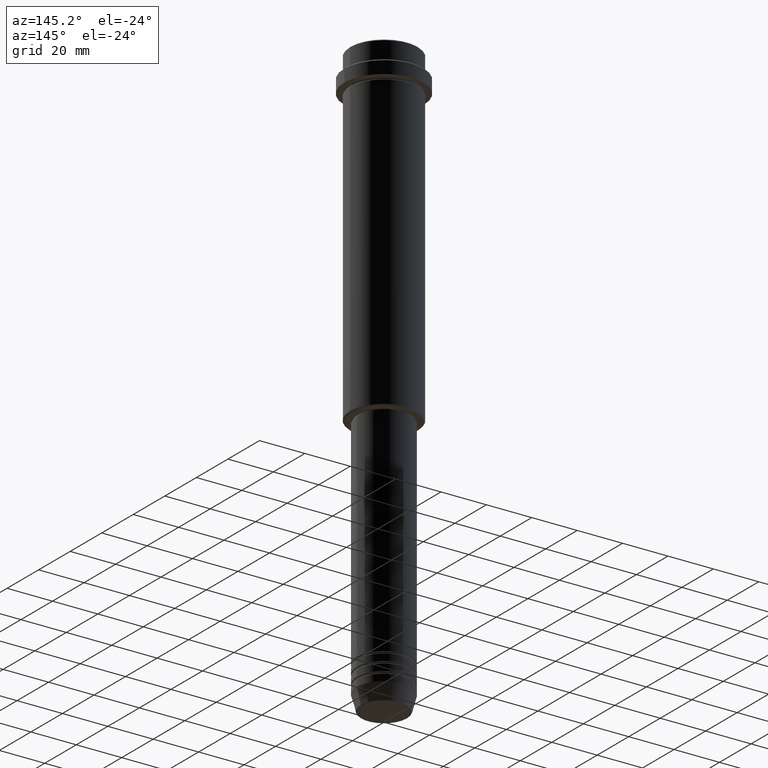
[diagram: clean part render]
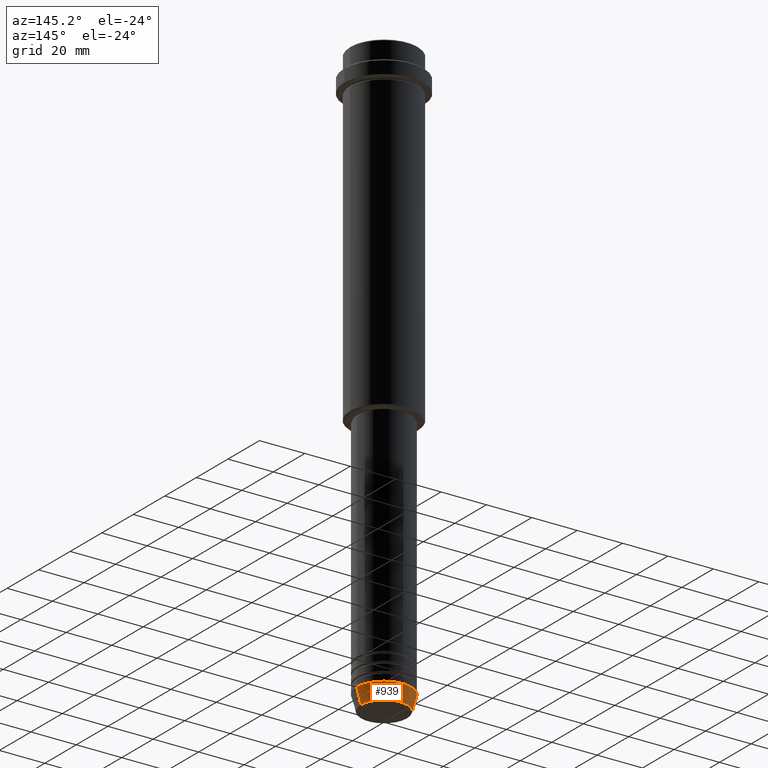
[diagram: same view with one face highlighted and labeled with its STEP entity id]
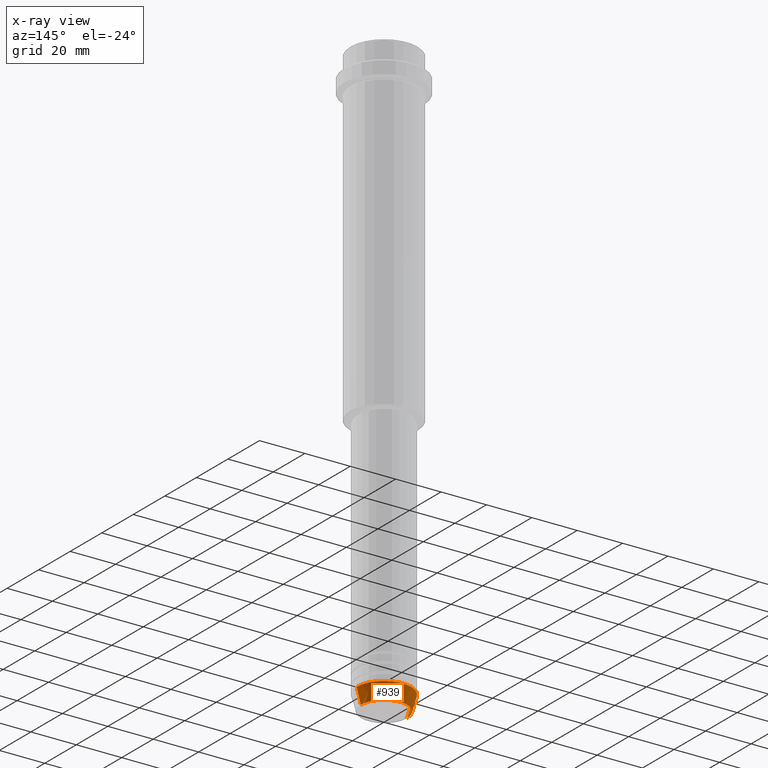
[diagram: x-ray of the same camera — body ghosted, the highlighted face saturated]
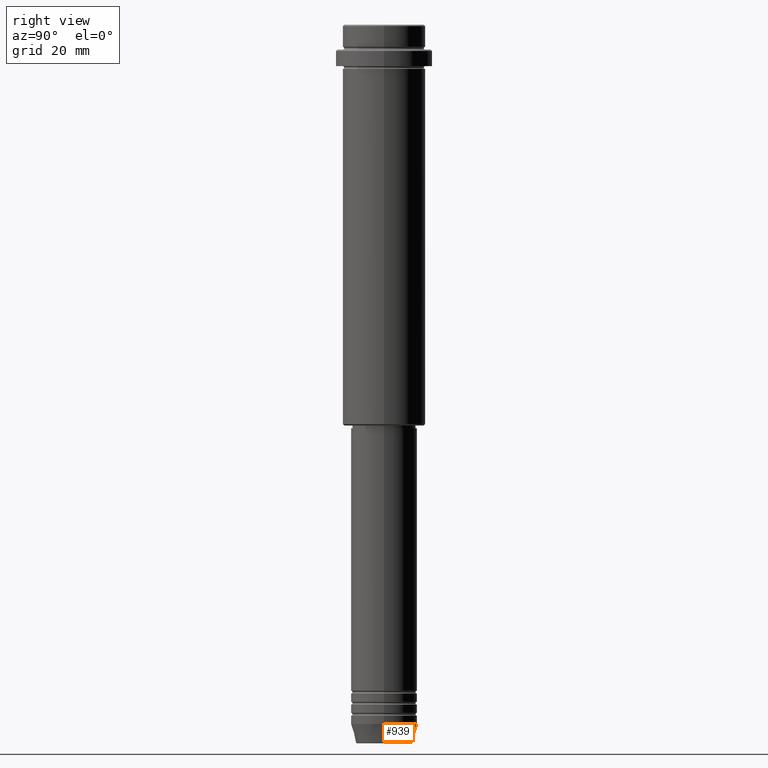
[diagram: same view with one face highlighted and labeled with its STEP entity id]
A machine part, auxiliary view. The second image highlights one B-rep face of the part: STEP entity #939.
The next image is the same camera in x-ray: the body ghosted, the highlighted face saturated — about 0% of this face is hidden behind the body in this view.
A second angle (right view) of the same face is appended — the face is thin or edge-on in the first view.
In plain terms, the highlighted conical surface has half-angle 15 deg.
Its self-contained STEP definition (entity closure, byte-faithful):
#62 = DIRECTION ( 'NONE',  ( 1.000000000000000000, 0.000000000000000000, 0.000000000000000000 ) ) ;
#65 = FACE_OUTER_BOUND ( 'NONE', #1087, .T. ) ;
#74 = DIRECTION ( 'NONE',  ( 1.000000000000000000, 0.000000000000000000, 0.000000000000000000 ) ) ;
#139 = CARTESIAN_POINT ( 'NONE',  ( 12.00000000000000000, 0.000000000000000000, -253.0000000000000000 ) ) ;
#175 = CARTESIAN_POINT ( 'NONE',  ( -12.00000000000000000, 1.469576158976823947E-15, -253.0000000000000000 ) ) ;
#211 = CARTESIAN_POINT ( 'NONE',  ( 12.00000000000000000, 0.000000000000000000, -253.0000000000000000 ) ) ;
#217 = AXIS2_PLACEMENT_3D ( 'NONE', #834, #1260, #74 ) ;
#271 = LINE ( 'NONE', #139, #806 ) ;
#353 = VERTEX_POINT ( 'NONE', #211 ) ;
#354 = CARTESIAN_POINT ( 'NONE',  ( -12.00000000000000000, 1.469576158976823947E-15, -253.0000000000000000 ) ) ;
#402 = DIRECTION ( 'NONE',  ( 1.000000000000000000, 0.000000000000000000, 0.000000000000000000 ) ) ;
#411 = EDGE_CURVE ( 'NONE', #750, #952, #1313, .T. ) ;
#485 = CONICAL_SURFACE ( 'NONE', #585, 12.00000000000000000, 0.2617993877991500740 ) ;
#501 = CARTESIAN_POINT ( 'NONE',  ( 0.000000000000000000, 0.000000000000000000, -253.0000000000000000 ) ) ;
#569 = ORIENTED_EDGE ( 'NONE', *, *, #411, .T. ) ;
#577 = EDGE_CURVE ( 'NONE', #662, #750, #945, .T. ) ;
#585 = AXIS2_PLACEMENT_3D ( 'NONE', #501, #1365, #62 ) ;
#597 = ORIENTED_EDGE ( 'NONE', *, *, #577, .T. ) ;
#617 = CARTESIAN_POINT ( 'NONE',  ( 10.22365507213719127, 0.000000000000000000, -259.6294095225512706 ) ) ;
#644 = CARTESIAN_POINT ( 'NONE',  ( -10.22365507213719127, 1.360806402472382744E-15, -259.6294095225512706 ) ) ;
#662 = VERTEX_POINT ( 'NONE', #617 ) ;
#666 = EDGE_CURVE ( 'NONE', #353, #952, #923, .T. ) ;
#675 = DIRECTION ( 'NONE',  ( -0.2588190451025213501, 3.169619151431772337E-17, 0.9659258262890680902 ) ) ;
#750 = VERTEX_POINT ( 'NONE', #644 ) ;
#806 = VECTOR ( 'NONE', #1198, 1000.000000000000000 ) ;
#831 = ORIENTED_EDGE ( 'NONE', *, *, #878, .F. ) ;
#834 = CARTESIAN_POINT ( 'NONE',  ( 0.000000000000000000, 0.000000000000000000, -259.6294095225512706 ) ) ;
#878 = EDGE_CURVE ( 'NONE', #662, #353, #271, .T. ) ;
#923 = CIRCLE ( 'NONE', #1093, 12.00000000000000000 ) ;
#939 = ADVANCED_FACE ( 'NONE', ( #65 ), #485, .T. ) ;
#945 = CIRCLE ( 'NONE', #217, 10.22365507213719127 ) ;
#952 = VERTEX_POINT ( 'NONE', #175 ) ;
#1087 = EDGE_LOOP ( 'NONE', ( #597, #569, #1222, #831 ) ) ;
#1093 = AXIS2_PLACEMENT_3D ( 'NONE', #1266, #1275, #402 ) ;
#1133 = VECTOR ( 'NONE', #675, 1000.000000000000000 ) ;
#1198 = DIRECTION ( 'NONE',  ( 0.2588190451025213501, 0.000000000000000000, 0.9659258262890680902 ) ) ;
#1222 = ORIENTED_EDGE ( 'NONE', *, *, #666, .F. ) ;
#1260 = DIRECTION ( 'NONE',  ( -0.000000000000000000, -0.000000000000000000, 1.000000000000000000 ) ) ;
#1266 = CARTESIAN_POINT ( 'NONE',  ( 0.000000000000000000, 0.000000000000000000, -253.0000000000000000 ) ) ;
#1275 = DIRECTION ( 'NONE',  ( -0.000000000000000000, -0.000000000000000000, 1.000000000000000000 ) ) ;
#1313 = LINE ( 'NONE', #354, #1133 ) ;
#1365 = DIRECTION ( 'NONE',  ( -0.000000000000000000, -0.000000000000000000, 1.000000000000000000 ) ) ;